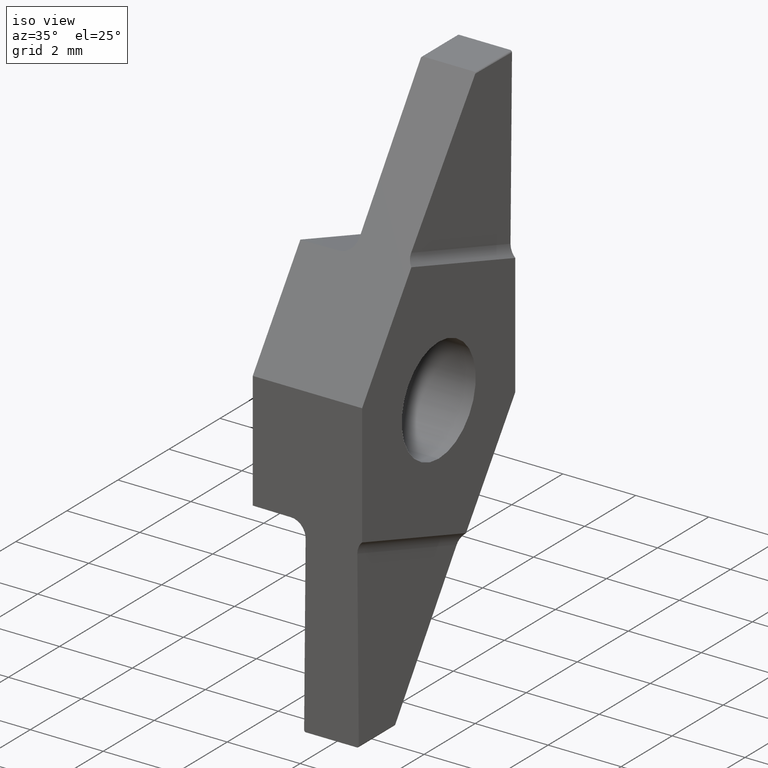
[diagram: clean part render]
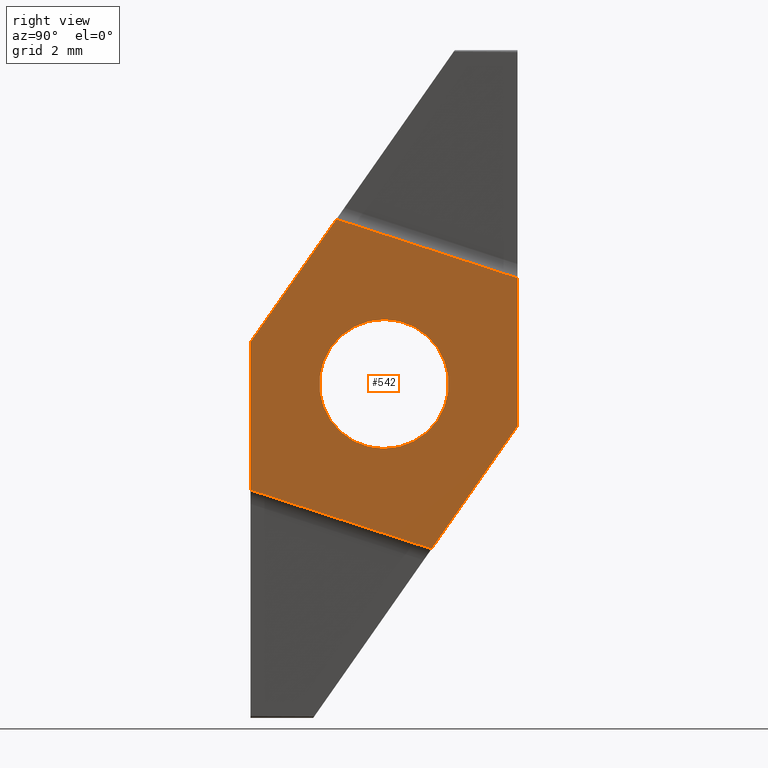
[diagram: tour spotlight — one face highlighted and labeled with its STEP entity id]
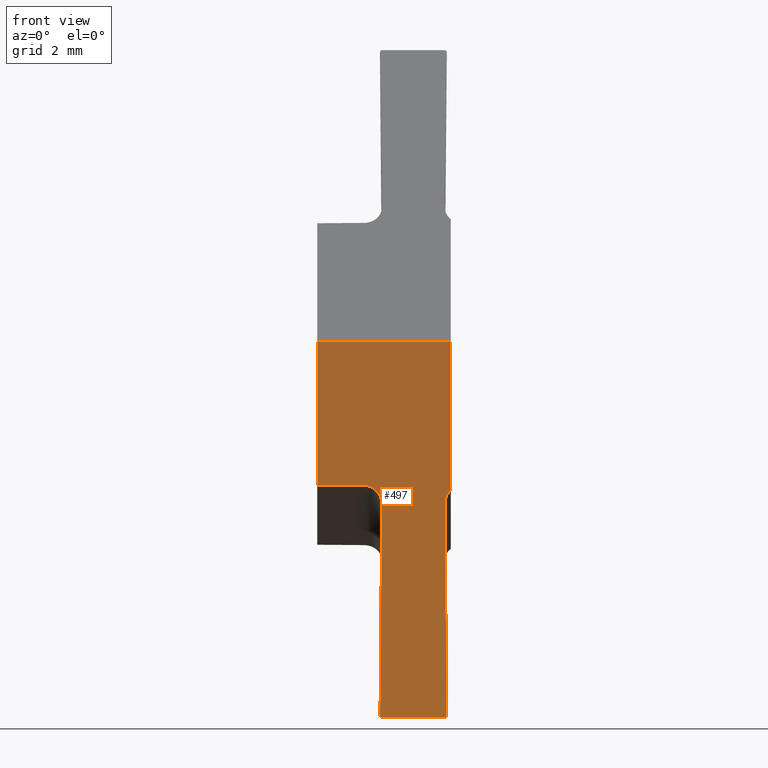
[diagram: tour spotlight — one face highlighted and labeled with its STEP entity id]
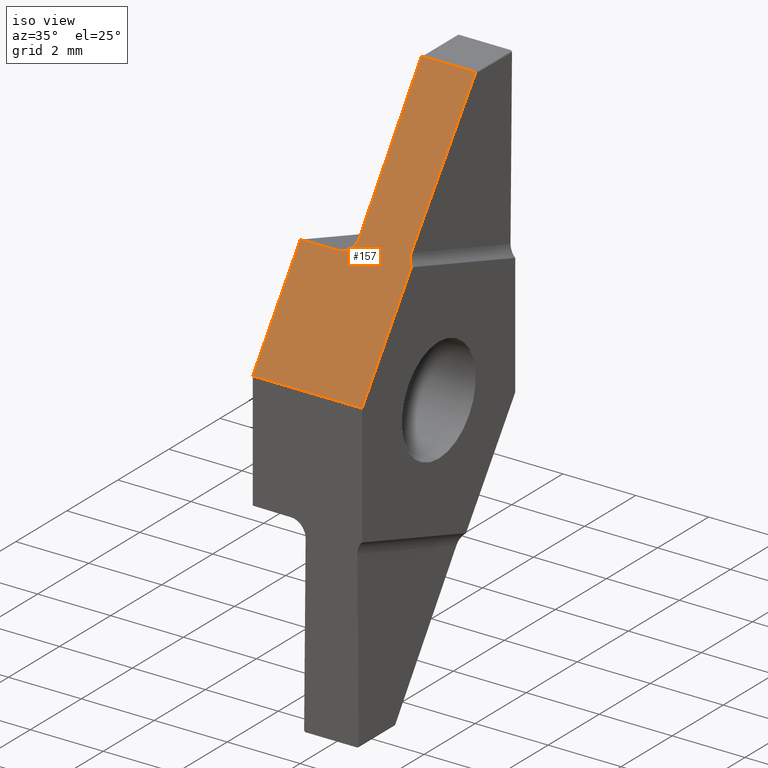
[diagram: tour spotlight — one face highlighted and labeled with its STEP entity id]
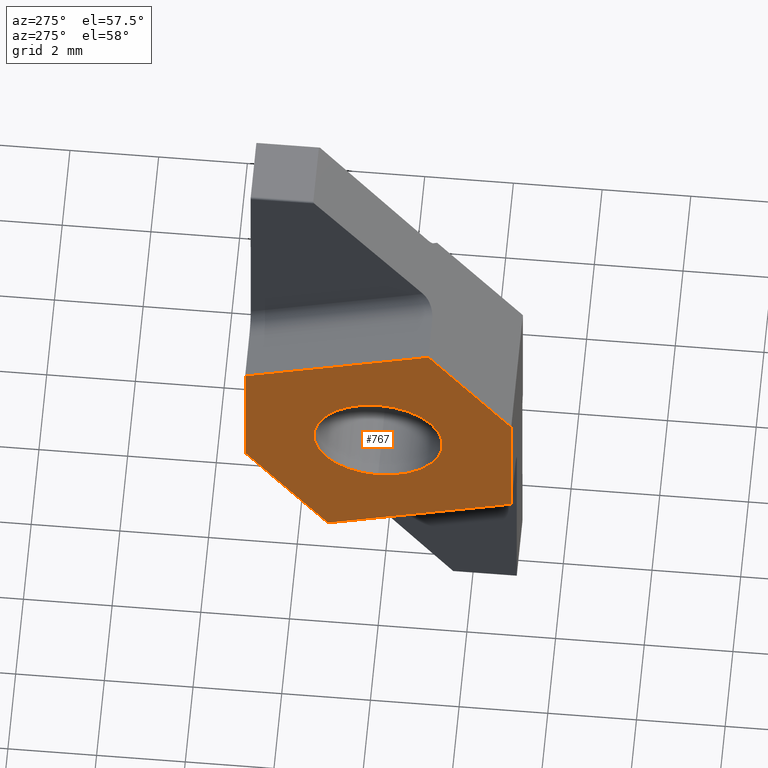
[diagram: tour spotlight — one face highlighted and labeled with its STEP entity id]
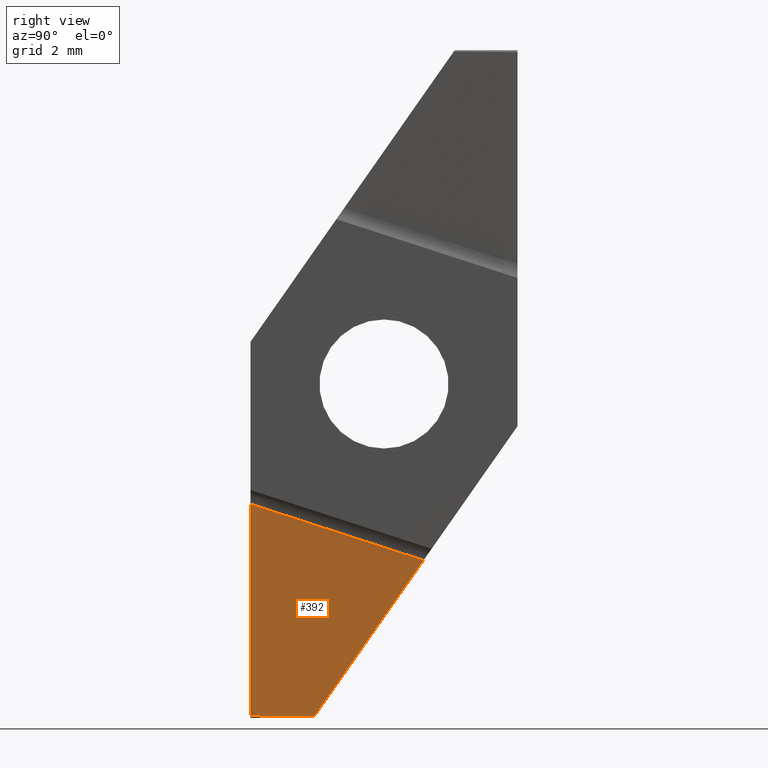
[diagram: tour spotlight — one face highlighted and labeled with its STEP entity id]
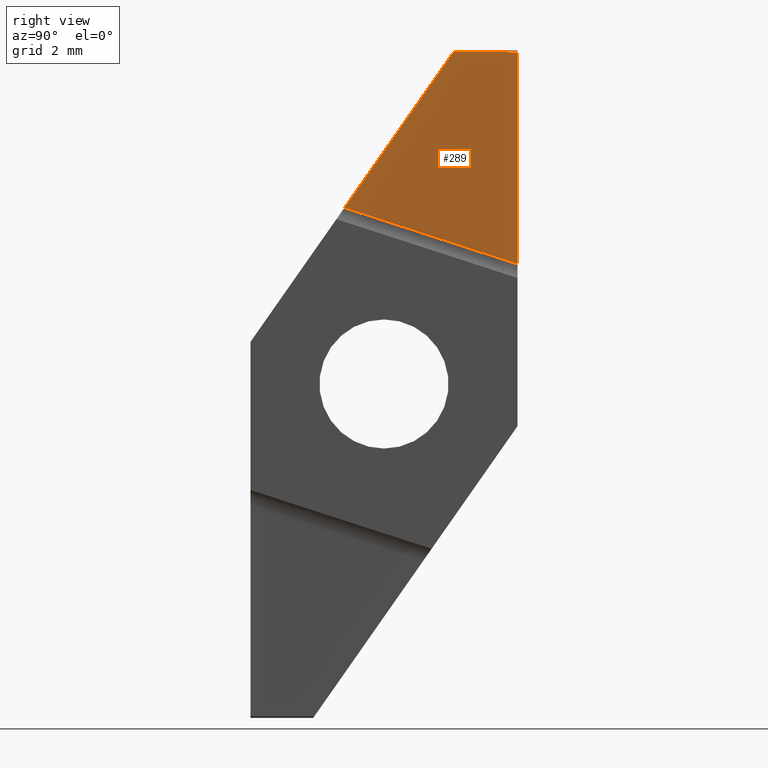
[diagram: tour spotlight — one face highlighted and labeled with its STEP entity id]
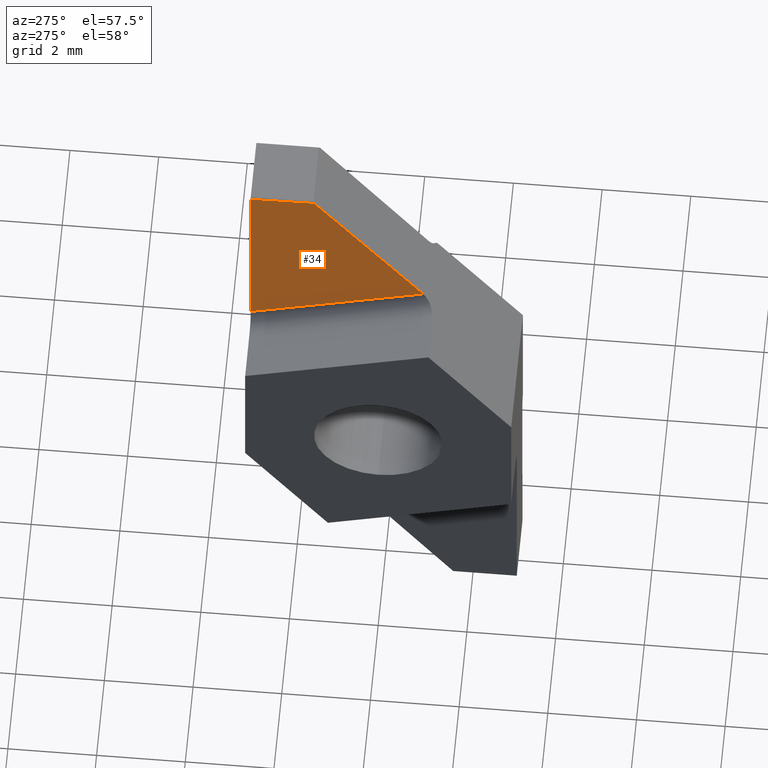
[diagram: tour spotlight — one face highlighted and labeled with its STEP entity id]
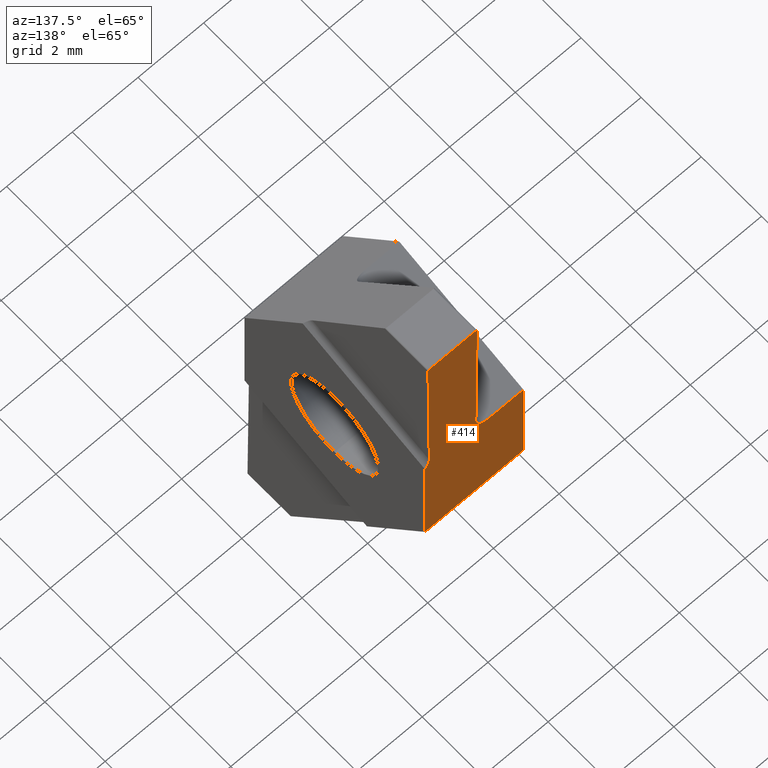
[diagram: tour spotlight — one face highlighted and labeled with its STEP entity id]
A machine part: a face-by-face anatomy tour. The part has 23 B-rep faces; the first image is the clean iso view, then the 8 largest visible faces are spotlighted one at a time (largest first), each with its STEP entity span.

Face 1 — right view, entity #542. In plain terms, the highlighted planar face has unit normal (1, 0, -0).
Definition (entity closure, byte-faithful):
#10 = CARTESIAN_POINT ( 'NONE',  ( 3.000000000000000000, -1.069273574088523526, 3.703259463367000848 ) ) ;
#20 = DIRECTION ( 'NONE',  ( 1.000000000000000000, 0.000000000000000000, -0.000000000000000000 ) ) ;
#23 = DIRECTION ( 'NONE',  ( 0.000000000000000000, -0.5735764363510442720, -0.8191520442889930198 ) ) ;
#25 = LINE ( 'NONE', #411, #299 ) ;
#35 = FACE_BOUND ( 'NONE', #99, .T. ) ;
#53 = VECTOR ( 'NONE', #562, 1000.000000000000227 ) ;
#86 = CIRCLE ( 'NONE', #539, 1.449999999999999067 ) ;
#87 = DIRECTION ( 'NONE',  ( 0.000000000000000000, -4.847819058262091306E-17, 1.000000000000000000 ) ) ;
#88 = VERTEX_POINT ( 'NONE', #669 ) ;
#96 = CARTESIAN_POINT ( 'NONE',  ( 3.000000000000000000, 0.000000000000000000, -1.449999999999999067 ) ) ;
#99 = EDGE_LOOP ( 'NONE', ( #770 ) ) ;
#110 = CARTESIAN_POINT ( 'NONE',  ( 3.000000000000000000, 0.000000000000000000, 0.000000000000000000 ) ) ;
#169 = EDGE_CURVE ( 'NONE', #88, #422, #275, .T. ) ;
#206 = CARTESIAN_POINT ( 'NONE',  ( 3.000000000000000000, -2.999999999999830802, 0.9458963666369446521 ) ) ;
#211 = LINE ( 'NONE', #571, #777 ) ;
#262 = CARTESIAN_POINT ( 'NONE',  ( 3.000000000000000000, -2.427050983125038197, 4.144428086663038080 ) ) ;
#266 = VERTEX_POINT ( 'NONE', #330 ) ;
#275 = LINE ( 'NONE', #206, #677 ) ;
#276 = EDGE_CURVE ( 'NONE', #697, #88, #211, .T. ) ;
#280 = DIRECTION ( 'NONE',  ( 0.000000000000000000, -4.847819058262091306E-17, -1.000000000000000000 ) ) ;
#299 = VECTOR ( 'NONE', #474, 1000.000000000000227 ) ;
#323 = AXIS2_PLACEMENT_3D ( 'NONE', #339, #20, #507 ) ;
#330 = CARTESIAN_POINT ( 'NONE',  ( 3.000000000000000000, 3.000000000000169198, -0.9458963666369446521 ) ) ;
#339 = CARTESIAN_POINT ( 'NONE',  ( 3.000000000000000000, 0.000000000000000000, 0.000000000000000000 ) ) ;
#350 = PLANE ( 'NONE',  #323 ) ;
#380 = CARTESIAN_POINT ( 'NONE',  ( 3.000000000000000000, 2.427050983125038197, -4.144428086663038080 ) ) ;
#393 = ORIENTED_EDGE ( 'NONE', *, *, #551, .T. ) ;
#394 = LINE ( 'NONE', #380, #53 ) ;
#397 = CARTESIAN_POINT ( 'NONE',  ( 3.000000000000000000, 3.000000000000169198, -0.9458963666369446521 ) ) ;
#399 = VERTEX_POINT ( 'NONE', #96 ) ;
#401 = ORIENTED_EDGE ( 'NONE', *, *, #276, .T. ) ;
#411 = CARTESIAN_POINT ( 'NONE',  ( 3.000000000000000000, -1.823566348508072199, -7.834663032647361192 ) ) ;
#422 = VERTEX_POINT ( 'NONE', #433 ) ;
#432 = EDGE_CURVE ( 'NONE', #697, #680, #618, .T. ) ;
#433 = CARTESIAN_POINT ( 'NONE',  ( 3.000000000000000000, -2.999999999999831246, -2.381072329785649977 ) ) ;
#449 = FACE_OUTER_BOUND ( 'NONE', #540, .T. ) ;
#455 = CARTESIAN_POINT ( 'NONE',  ( 3.000000000000000000, 2.999999999999831246, 2.381072329785649977 ) ) ;
#462 = EDGE_CURVE ( 'NONE', #399, #399, #86, .T. ) ;
#473 = EDGE_CURVE ( 'NONE', #500, #266, #25, .T. ) ;
#474 = DIRECTION ( 'NONE',  ( 0.000000000000000000, 0.5735764363510442720, 0.8191520442889930198 ) ) ;
#478 = ORIENTED_EDGE ( 'NONE', *, *, #624, .F. ) ;
#500 = VERTEX_POINT ( 'NONE', #672 ) ;
#507 = DIRECTION ( 'NONE',  ( 0.000000000000000000, 0.000000000000000000, 1.000000000000000000 ) ) ;
#515 = LINE ( 'NONE', #397, #735 ) ;
#525 = ORIENTED_EDGE ( 'NONE', *, *, #169, .T. ) ;
#539 = AXIS2_PLACEMENT_3D ( 'NONE', #110, #774, #573 ) ;
#540 = EDGE_LOOP ( 'NONE', ( #572, #401, #525, #478, #625, #393 ) ) ;
#542 = ADVANCED_FACE ( 'NONE', ( #35, #449 ), #350, .T. ) ;
#551 = EDGE_CURVE ( 'NONE', #266, #680, #515, .T. ) ;
#559 = DIRECTION ( 'NONE',  ( -0.000000000000000000, 0.9510565162951556406, -0.3090169943749410120 ) ) ;
#562 = DIRECTION ( 'NONE',  ( 0.000000000000000000, -0.9510565162951556406, 0.3090169943749410120 ) ) ;
#571 = CARTESIAN_POINT ( 'NONE',  ( 3.000000000000000000, 1.823566348508409707, 7.834663032647361192 ) ) ;
#572 = ORIENTED_EDGE ( 'NONE', *, *, #432, .F. ) ;
#573 = DIRECTION ( 'NONE',  ( 0.000000000000000000, 0.000000000000000000, -1.000000000000000000 ) ) ;
#579 = VECTOR ( 'NONE', #559, 1000.000000000000227 ) ;
#618 = LINE ( 'NONE', #262, #579 ) ;
#624 = EDGE_CURVE ( 'NONE', #500, #422, #394, .T. ) ;
#625 = ORIENTED_EDGE ( 'NONE', *, *, #473, .T. ) ;
#669 = CARTESIAN_POINT ( 'NONE',  ( 3.000000000000000000, -2.999999999999830802, 0.9458963666369446521 ) ) ;
#672 = CARTESIAN_POINT ( 'NONE',  ( 3.000000000000000000, 1.069273574088523526, -3.703259463367000848 ) ) ;
#677 = VECTOR ( 'NONE', #280, 1000.000000000000000 ) ;
#680 = VERTEX_POINT ( 'NONE', #455 ) ;
#697 = VERTEX_POINT ( 'NONE', #10 ) ;
#735 = VECTOR ( 'NONE', #87, 1000.000000000000000 ) ;
#770 = ORIENTED_EDGE ( 'NONE', *, *, #462, .T. ) ;
#774 = DIRECTION ( 'NONE',  ( -1.000000000000000000, 0.000000000000000000, 0.000000000000000000 ) ) ;
#777 = VECTOR ( 'NONE', #23, 1000.000000000000227 ) ;

Face 2 — front view, entity #497. In plain terms, the highlighted planar face has unit normal (0, 1, -0).
Definition (entity closure, byte-faithful):
#12 = VERTEX_POINT ( 'NONE', #148 ) ;
#24 = ORIENTED_EDGE ( 'NONE', *, *, #77, .T. ) ;
#27 = CARTESIAN_POINT ( 'NONE',  ( 2.971722154336991384, -2.999999999999830802, -2.294423796453480602 ) ) ;
#40 = ORIENTED_EDGE ( 'NONE', *, *, #355, .T. ) ;
#56 = CARTESIAN_POINT ( 'NONE',  ( 2.868520297534491004, -2.999999999999830802, -2.696678719166964555 ) ) ;
#62 = ORIENTED_EDGE ( 'NONE', *, *, #655, .T. ) ;
#66 = DIRECTION ( 'NONE',  ( 0.000000000000000000, 0.000000000000000000, 1.000000000000000000 ) ) ;
#77 = EDGE_CURVE ( 'NONE', #391, #773, #430, .T. ) ;
#78 = ORIENTED_EDGE ( 'NONE', *, *, #750, .F. ) ;
#85 = VERTEX_POINT ( 'NONE', #548 ) ;
#88 = VERTEX_POINT ( 'NONE', #669 ) ;
#97 = LINE ( 'NONE', #307, #689 ) ;
#112 = CARTESIAN_POINT ( 'NONE',  ( 1.451432179471500605, -2.999999999999830802, -2.702124314904428726 ) ) ;
#118 = VECTOR ( 'NONE', #248, 1000.000000000000114 ) ;
#119 = EDGE_CURVE ( 'NONE', #177, #85, #156, .T. ) ;
#121 = DIRECTION ( 'NONE',  ( 0.000000000000000000, 1.000000000000000000, -4.847819058262091306E-17 ) ) ;
#132 = DIRECTION ( 'NONE',  ( -0.000000000000000000, -1.000000000000000000, 4.847819058262091306E-17 ) ) ;
#134 = LINE ( 'NONE', #27, #173 ) ;
#138 = CARTESIAN_POINT ( 'NONE',  ( 3.379357527985992173E-18, -2.999999999999831246, -2.268489970101723152 ) ) ;
#143 =( BOUNDED_CURVE ( )  B_SPLINE_CURVE ( 3, ( #56, #304, #730, #746 ),
 .UNSPECIFIED., .F., .F. ) 
 B_SPLINE_CURVE_WITH_KNOTS ( ( 4, 4 ),
 ( 1.561620612498219485, 2.405687101123587190 ),
 .UNSPECIFIED. ) 
 CURVE ( )  GEOMETRIC_REPRESENTATION_ITEM ( )  RATIONAL_B_SPLINE_CURVE ( ( 1.000000000000000000, 0.9415053179130717931, 0.9415053179130717931, 1.000000000000000000 ) ) 
 REPRESENTATION_ITEM ( '' )  );
#148 = CARTESIAN_POINT ( 'NONE',  ( 0.000000000000000000, -2.999999999999830802, 0.9458963666369446521 ) ) ;
#156 = CIRCLE ( 'NONE', #192, 0.05000000000000056483 ) ;
#160 = CARTESIAN_POINT ( 'NONE',  ( 1.410001903846790583, -3.000000000000314859, -7.449563673225082283 ) ) ;
#167 = CARTESIAN_POINT ( 'NONE',  ( 10.00000000000000000, -3.000000000000169198, -7.500000000000000000 ) ) ;
#169 = EDGE_CURVE ( 'NONE', #88, #422, #275, .T. ) ;
#173 = VECTOR ( 'NONE', #326, 999.9999999999998863 ) ;
#177 = VERTEX_POINT ( 'NONE', #686 ) ;
#183 = CARTESIAN_POINT ( 'NONE',  ( 3.000000000000000000, -2.999999999999830802, 0.9458963666369446521 ) ) ;
#190 = CARTESIAN_POINT ( 'NONE',  ( 1.054768801550695079, -2.999999999999830802, -2.277694797982669606 ) ) ;
#192 = AXIS2_PLACEMENT_3D ( 'NONE', #617, #608, #66 ) ;
#206 = CARTESIAN_POINT ( 'NONE',  ( 3.000000000000000000, -2.999999999999830802, 0.9458963666369446521 ) ) ;
#207 = ORIENTED_EDGE ( 'NONE', *, *, #524, .T. ) ;
#208 = EDGE_CURVE ( 'NONE', #85, #417, #744, .T. ) ;
#218 = VERTEX_POINT ( 'NONE', #138 ) ;
#224 = DIRECTION ( 'NONE',  ( 0.000000000000000000, -4.847819058262091306E-17, -1.000000000000000000 ) ) ;
#227 = CARTESIAN_POINT ( 'NONE',  ( 1.460000000000000409, -2.999999999999832578, -7.500000000000003553 ) ) ;
#241 = PLANE ( 'NONE',  #359 ) ;
#243 = VECTOR ( 'NONE', #610, 1000.000000000000000 ) ;
#248 = DIRECTION ( 'NONE',  ( -0.008726535498373853145, -4.847634468166900475E-17, -0.9999619230641713097 ) ) ;
#256 = VECTOR ( 'NONE', #395, 1000.000000000000227 ) ;
#275 = LINE ( 'NONE', #206, #677 ) ;
#280 = DIRECTION ( 'NONE',  ( 0.000000000000000000, -4.847819058262091306E-17, -1.000000000000000000 ) ) ;
#284 = CARTESIAN_POINT ( 'NONE',  ( 1.453583646786359873, -2.999999999999829914, -2.455590579497275883 ) ) ;
#290 = VECTOR ( 'NONE', #653, 1000.000000000000000 ) ;
#304 = CARTESIAN_POINT ( 'NONE',  ( 2.867455770228641843, -2.999999999999831246, -2.574695972163809188 ) ) ;
#307 = CARTESIAN_POINT ( 'NONE',  ( 0.000000000000000000, -2.999999999999830802, 0.9458963666369446521 ) ) ;
#326 = DIRECTION ( 'NONE',  ( 0.9999619230641714207, -4.230466510160072040E-19, -0.008726535498370404514 ) ) ;
#332 = EDGE_CURVE ( 'NONE', #88, #12, #405, .T. ) ;
#355 = EDGE_CURVE ( 'NONE', #12, #218, #97, .T. ) ;
#359 = AXIS2_PLACEMENT_3D ( 'NONE', #183, #121, #372 ) ;
#372 = DIRECTION ( 'NONE',  ( 0.000000000000000000, 4.847819058262091306E-17, 1.000000000000000000 ) ) ;
#391 = VERTEX_POINT ( 'NONE', #424 ) ;
#395 = DIRECTION ( 'NONE',  ( -0.008726535498366836188, 4.847634468166900475E-17, 0.9999619230641713097 ) ) ;
#405 = LINE ( 'NONE', #546, #243 ) ;
#408 = ORIENTED_EDGE ( 'NONE', *, *, #208, .T. ) ;
#410 = ORIENTED_EDGE ( 'NONE', *, *, #332, .T. ) ;
#417 = VERTEX_POINT ( 'NONE', #614 ) ;
#422 = VERTEX_POINT ( 'NONE', #433 ) ;
#424 = CARTESIAN_POINT ( 'NONE',  ( 1.451432179471500605, -2.999999999999830802, -2.702124314904428726 ) ) ;
#428 = FACE_OUTER_BOUND ( 'NONE', #715, .T. ) ;
#430 = LINE ( 'NONE', #679, #118 ) ;
#433 = CARTESIAN_POINT ( 'NONE',  ( 3.000000000000000000, -2.999999999999831246, -2.381072329785649977 ) ) ;
#443 = DIRECTION ( 'NONE',  ( 0.000000000000000000, 0.000000000000000000, 1.000000000000000000 ) ) ;
#459 = CARTESIAN_POINT ( 'NONE',  ( 2.836744459594391365, -2.999999999999830802, 0.9444716571197171451 ) ) ;
#470 = ORIENTED_EDGE ( 'NONE', *, *, #169, .F. ) ;
#497 = ADVANCED_FACE ( 'NONE', ( #428 ), #241, .F. ) ;
#524 = EDGE_CURVE ( 'NONE', #417, #422, #143, .T. ) ;
#532 = CARTESIAN_POINT ( 'NONE',  ( 1.289238112131136926, -2.999999999999829914, -2.279740980657095406 ) ) ;
#535 = ORIENTED_EDGE ( 'NONE', *, *, #760, .T. ) ;
#538 = ORIENTED_EDGE ( 'NONE', *, *, #665, .T. ) ;
#546 = CARTESIAN_POINT ( 'NONE',  ( 3.000000000000000000, -2.999999999999830802, 0.9458963666369446521 ) ) ;
#548 = CARTESIAN_POINT ( 'NONE',  ( 2.909998096153209701, -3.000000000000002665, -7.449563673225081395 ) ) ;
#556 =( BOUNDED_CURVE ( )  B_SPLINE_CURVE ( 3, ( #716, #532, #284, #112 ),
 .UNSPECIFIED., .F., .F. ) 
 B_SPLINE_CURVE_WITH_KNOTS ( ( 4, 4 ),
 ( 3.149892207498850016, 4.721564694681373631 ),
 .UNSPECIFIED. ) 
 CURVE ( )  GEOMETRIC_REPRESENTATION_ITEM ( )  RATIONAL_B_SPLINE_CURVE ( ( 1.000000000000000000, 0.8045312959125144880, 0.8045312959125144880, 1.000000000000000000 ) ) 
 REPRESENTATION_ITEM ( '' )  );
#561 = CIRCLE ( 'NONE', #616, 0.05000000000000143219 ) ;
#565 = CARTESIAN_POINT ( 'NONE',  ( 1.460000000000000409, -2.999999999999829026, -7.450000000000001954 ) ) ;
#594 = LINE ( 'NONE', #167, #290 ) ;
#599 = VERTEX_POINT ( 'NONE', #190 ) ;
#608 = DIRECTION ( 'NONE',  ( -0.000000000000000000, -1.000000000000000000, 4.847819058262091306E-17 ) ) ;
#610 = DIRECTION ( 'NONE',  ( -1.000000000000000000, 0.000000000000000000, 0.000000000000000000 ) ) ;
#614 = CARTESIAN_POINT ( 'NONE',  ( 2.868520297534491004, -2.999999999999830802, -2.696678719166964555 ) ) ;
#616 = AXIS2_PLACEMENT_3D ( 'NONE', #565, #132, #443 ) ;
#617 = CARTESIAN_POINT ( 'NONE',  ( 2.860000000000000764, -2.999999999999829026, -7.449999999999999289 ) ) ;
#653 = DIRECTION ( 'NONE',  ( -1.000000000000000000, 0.000000000000000000, 0.000000000000000000 ) ) ;
#655 = EDGE_CURVE ( 'NONE', #218, #599, #134, .T. ) ;
#665 = EDGE_CURVE ( 'NONE', #773, #728, #561, .T. ) ;
#669 = CARTESIAN_POINT ( 'NONE',  ( 3.000000000000000000, -2.999999999999830802, 0.9458963666369446521 ) ) ;
#677 = VECTOR ( 'NONE', #280, 1000.000000000000000 ) ;
#679 = CARTESIAN_POINT ( 'NONE',  ( 1.483383476474299911, -2.999999999999830802, 0.9591316785270335155 ) ) ;
#686 = CARTESIAN_POINT ( 'NONE',  ( 2.860000000000000764, -3.000000000000169198, -7.500000000000000000 ) ) ;
#689 = VECTOR ( 'NONE', #224, 1000.000000000000000 ) ;
#715 = EDGE_LOOP ( 'NONE', ( #62, #535, #24, #538, #78, #745, #408, #207, #470, #410, #40 ) ) ;
#716 = CARTESIAN_POINT ( 'NONE',  ( 1.054768801550695079, -2.999999999999830802, -2.277694797982669606 ) ) ;
#728 = VERTEX_POINT ( 'NONE', #227 ) ;
#730 = CARTESIAN_POINT ( 'NONE',  ( 2.914005233789451310, -2.999999999999831246, -2.462957750624114261 ) ) ;
#744 = LINE ( 'NONE', #459, #256 ) ;
#745 = ORIENTED_EDGE ( 'NONE', *, *, #119, .T. ) ;
#746 = CARTESIAN_POINT ( 'NONE',  ( 3.000000000000000000, -2.999999999999831246, -2.381072329785649977 ) ) ;
#750 = EDGE_CURVE ( 'NONE', #177, #728, #594, .T. ) ;
#760 = EDGE_CURVE ( 'NONE', #599, #391, #556, .T. ) ;
#773 = VERTEX_POINT ( 'NONE', #160 ) ;

Face 3 — iso view, entity #157. In plain terms, the highlighted planar face has unit normal (0, 0.8192, -0.5736).
Definition (entity closure, byte-faithful):
#6 = CARTESIAN_POINT ( 'NONE',  ( 3.000000000000000000, 1.823566348508409707, 7.834663032647361192 ) ) ;
#10 = CARTESIAN_POINT ( 'NONE',  ( 3.000000000000000000, -1.069273574088523526, 3.703259463367000848 ) ) ;
#11 = CARTESIAN_POINT ( 'NONE',  ( 1.289238112131137370, -1.127075876279473032, 3.620709220707892140 ) ) ;
#12 = VERTEX_POINT ( 'NONE', #148 ) ;
#13 = EDGE_CURVE ( 'NONE', #261, #553, #333, .T. ) ;
#14 = VECTOR ( 'NONE', #67, 1000.000000000000114 ) ;
#23 = DIRECTION ( 'NONE',  ( 0.000000000000000000, -0.5735764363510442720, -0.8191520442889930198 ) ) ;
#30 = ORIENTED_EDGE ( 'NONE', *, *, #483, .T. ) ;
#39 = EDGE_CURVE ( 'NONE', #567, #747, #153, .T. ) ;
#44 = CARTESIAN_POINT ( 'NONE',  ( 1.451432179471501271, -0.8861363315425921927, 3.964806551268740265 ) ) ;
#59 = CARTESIAN_POINT ( 'NONE',  ( 2.860000000000000764, 1.589232770288270036, 7.500000000000000000 ) ) ;
#60 = FACE_OUTER_BOUND ( 'NONE', #476, .T. ) ;
#65 = EDGE_CURVE ( 'NONE', #448, #396, #343, .T. ) ;
#67 = DIRECTION ( 'NONE',  ( -0.9999623398293699950, -0.004977867723314927453, -0.007109131866878152899 ) ) ;
#80 = CARTESIAN_POINT ( 'NONE',  ( 1.460000000000000409, 1.589232770288606211, 7.500000000000000000 ) ) ;
#83 = CARTESIAN_POINT ( 'NONE',  ( 2.914005233789451310, -1.022563786041261302, 3.769967954062046100 ) ) ;
#88 = VERTEX_POINT ( 'NONE', #669 ) ;
#93 =( BOUNDED_CURVE ( )  B_SPLINE_CURVE ( 3, ( #124, #602, #664, #59 ),
 .UNSPECIFIED., .F., .F. ) 
 B_SPLINE_CURVE_WITH_KNOTS ( ( 4, 4 ),
 ( 1.967887147254286484, 3.141592653589793116 ),
 .UNSPECIFIED. ) 
 CURVE ( )  GEOMETRIC_REPRESENTATION_ITEM ( )  RATIONAL_B_SPLINE_CURVE ( ( 1.000000000000000000, 0.8884583775857104460, 0.8884583775857104460, 1.000000000000000000 ) ) 
 REPRESENTATION_ITEM ( '' )  );
#113 = ORIENTED_EDGE ( 'NONE', *, *, #39, .T. ) ;
#124 = CARTESIAN_POINT ( 'NONE',  ( 2.906109499133116447, 1.567762207338842861, 7.469336858320145822 ) ) ;
#148 = CARTESIAN_POINT ( 'NONE',  ( 0.000000000000000000, -2.999999999999830802, 0.9458963666369446521 ) ) ;
#153 = LINE ( 'NONE', #582, #311 ) ;
#157 = ADVANCED_FACE ( 'NONE', ( #60 ), #552, .F. ) ;
#166 = ORIENTED_EDGE ( 'NONE', *, *, #635, .T. ) ;
#174 = ORIENTED_EDGE ( 'NONE', *, *, #381, .T. ) ;
#184 = LINE ( 'NONE', #779, #203 ) ;
#202 = ORIENTED_EDGE ( 'NONE', *, *, #332, .F. ) ;
#203 = VECTOR ( 'NONE', #722, 1000.000000000000114 ) ;
#211 = LINE ( 'NONE', #571, #777 ) ;
#235 = CARTESIAN_POINT ( 'NONE',  ( 1.054768801550694191, -1.128243077449439635, 3.619042284683054778 ) ) ;
#243 = VECTOR ( 'NONE', #610, 1000.000000000000000 ) ;
#255 = CARTESIAN_POINT ( 'NONE',  ( 1.054768801550694191, -1.128243077449439635, 3.619042284683054778 ) ) ;
#260 = CARTESIAN_POINT ( 'NONE',  ( 2.868520297534491004, -0.8892426552336960555, 3.960370261281475290 ) ) ;
#261 = VERTEX_POINT ( 'NONE', #80 ) ;
#276 = EDGE_CURVE ( 'NONE', #697, #88, #211, .T. ) ;
#311 = VECTOR ( 'NONE', #520, 1000.000000000000114 ) ;
#314 = CARTESIAN_POINT ( 'NONE',  ( 0.000000000000000000, 1.823566348508409707, 7.834663032647361192 ) ) ;
#318 = CARTESIAN_POINT ( 'NONE',  ( 1.421925131091472450, 1.581177407767084819, 7.488495750071781920 ) ) ;
#325 = EDGE_CURVE ( 'NONE', #747, #553, #93, .T. ) ;
#332 = EDGE_CURVE ( 'NONE', #88, #12, #405, .T. ) ;
#333 = LINE ( 'NONE', #575, #415 ) ;
#337 = ORIENTED_EDGE ( 'NONE', *, *, #13, .F. ) ;
#343 =( BOUNDED_CURVE ( )  B_SPLINE_CURVE ( 3, ( #364, #374, #11, #255 ),
 .UNSPECIFIED., .F., .F. ) 
 B_SPLINE_CURVE_WITH_KNOTS ( ( 4, 4 ),
 ( 4.703213266088004829, 6.274885753270529776 ),
 .UNSPECIFIED. ) 
 CURVE ( )  GEOMETRIC_REPRESENTATION_ITEM ( )  RATIONAL_B_SPLINE_CURVE ( ( 1.000000000000000000, 0.8045312959125141550, 0.8045312959125141550, 1.000000000000000000 ) ) 
 REPRESENTATION_ITEM ( '' )  );
#352 = ORIENTED_EDGE ( 'NONE', *, *, #276, .F. ) ;
#356 = ORIENTED_EDGE ( 'NONE', *, *, #65, .T. ) ;
#364 = CARTESIAN_POINT ( 'NONE',  ( 1.451432179471501271, -0.8861363315425921927, 3.964806551268740265 ) ) ;
#365 = CARTESIAN_POINT ( 'NONE',  ( 0.000000000000000000, -1.133493774764394724, 3.611543511778694704 ) ) ;
#374 = CARTESIAN_POINT ( 'NONE',  ( 1.453583646786360761, -1.026766231340057400, 3.763966240185128154 ) ) ;
#376 = LINE ( 'NONE', #314, #402 ) ;
#379 = DIRECTION ( 'NONE',  ( 0.000000000000000000, -0.5735764363510442720, -0.8191520442889930198 ) ) ;
#381 = EDGE_CURVE ( 'NONE', #457, #448, #184, .T. ) ;
#390 =( BOUNDED_CURVE ( )  B_SPLINE_CURVE ( 3, ( #627, #83, #682, #753 ),
 .UNSPECIFIED., .F., .F. ) 
 B_SPLINE_CURVE_WITH_KNOTS ( ( 4, 4 ),
 ( 0.7359055524662067027, 1.579972041091574297 ),
 .UNSPECIFIED. ) 
 CURVE ( )  GEOMETRIC_REPRESENTATION_ITEM ( )  RATIONAL_B_SPLINE_CURVE ( ( 1.000000000000000000, 0.9415053179130719041, 0.9415053179130719041, 1.000000000000000000 ) ) 
 REPRESENTATION_ITEM ( '' )  );
#396 = VERTEX_POINT ( 'NONE', #235 ) ;
#402 = VECTOR ( 'NONE', #379, 1000.000000000000227 ) ;
#405 = LINE ( 'NONE', #546, #243 ) ;
#415 = VECTOR ( 'NONE', #458, 1000.000000000000000 ) ;
#435 = ORIENTED_EDGE ( 'NONE', *, *, #325, .T. ) ;
#441 = DIRECTION ( 'NONE',  ( 0.000000000000000000, 0.5735764363510442720, 0.8191520442889930198 ) ) ;
#448 = VERTEX_POINT ( 'NONE', #44 ) ;
#457 = VERTEX_POINT ( 'NONE', #541 ) ;
#458 = DIRECTION ( 'NONE',  ( 1.000000000000000000, 0.000000000000000000, 0.000000000000000000 ) ) ;
#463 = CARTESIAN_POINT ( 'NONE',  ( 2.860000000000000764, 1.589232770288270036, 7.500000000000000000 ) ) ;
#468 = ORIENTED_EDGE ( 'NONE', *, *, #503, .T. ) ;
#476 = EDGE_LOOP ( 'NONE', ( #337, #755, #174, #356, #468, #30, #202, #352, #166, #113, #435 ) ) ;
#483 = EDGE_CURVE ( 'NONE', #516, #12, #376, .T. ) ;
#491 = AXIS2_PLACEMENT_3D ( 'NONE', #6, #692, #441 ) ;
#503 = EDGE_CURVE ( 'NONE', #396, #516, #620, .T. ) ;
#516 = VERTEX_POINT ( 'NONE', #365 ) ;
#517 = CARTESIAN_POINT ( 'NONE',  ( 1.460000000000000409, 1.589232770288606211, 7.500000000000000000 ) ) ;
#520 = DIRECTION ( 'NONE',  ( 0.008774687666360856883, 0.5735543546259364023, 0.8191205083172948820 ) ) ;
#530 =( BOUNDED_CURVE ( )  B_SPLINE_CURVE ( 3, ( #517, #748, #318, #637 ),
 .UNSPECIFIED., .F., .F. ) 
 B_SPLINE_CURVE_WITH_KNOTS ( ( 4, 4 ),
 ( 3.141592653589793116, 4.315298159922322796 ),
 .UNSPECIFIED. ) 
 CURVE ( )  GEOMETRIC_REPRESENTATION_ITEM ( )  RATIONAL_B_SPLINE_CURVE ( ( 1.000000000000000000, 0.8884583775862600064, 0.8884583775862600064, 1.000000000000000000 ) ) 
 REPRESENTATION_ITEM ( '' )  );
#541 = CARTESIAN_POINT ( 'NONE',  ( 1.413890500866886502, 1.567762207339183478, 7.469336858320151151 ) ) ;
#546 = CARTESIAN_POINT ( 'NONE',  ( 3.000000000000000000, -2.999999999999830802, 0.9458963666369446521 ) ) ;
#552 = PLANE ( 'NONE',  #491 ) ;
#553 = VERTEX_POINT ( 'NONE', #463 ) ;
#567 = VERTEX_POINT ( 'NONE', #260 ) ;
#571 = CARTESIAN_POINT ( 'NONE',  ( 3.000000000000000000, 1.823566348508409707, 7.834663032647361192 ) ) ;
#575 = CARTESIAN_POINT ( 'NONE',  ( 3.000000000000000000, 1.589232770288606211, 7.500000000000000000 ) ) ;
#582 = CARTESIAN_POINT ( 'NONE',  ( 2.910029920781017410, 1.824019181218809571, 7.835309744780587948 ) ) ;
#602 = CARTESIAN_POINT ( 'NONE',  ( 2.898074868908619539, 1.581177407767039966, 7.488495750071722412 ) ) ;
#610 = DIRECTION ( 'NONE',  ( -1.000000000000000000, 0.000000000000000000, 0.000000000000000000 ) ) ;
#612 = CARTESIAN_POINT ( 'NONE',  ( 3.044514925925334570, -1.118338011413120947, 3.633188184999952774 ) ) ;
#620 = LINE ( 'NONE', #612, #14 ) ;
#627 = CARTESIAN_POINT ( 'NONE',  ( 3.000000000000000000, -1.069273574088523526, 3.703259463367000848 ) ) ;
#630 = EDGE_CURVE ( 'NONE', #261, #457, #530, .T. ) ;
#635 = EDGE_CURVE ( 'NONE', #697, #567, #390, .T. ) ;
#637 = CARTESIAN_POINT ( 'NONE',  ( 1.413890500866886502, 1.567762207339183478, 7.469336858320151151 ) ) ;
#643 = CARTESIAN_POINT ( 'NONE',  ( 2.906109499133116447, 1.567762207338842861, 7.469336858320145822 ) ) ;
#664 = CARTESIAN_POINT ( 'NONE',  ( 2.880775428178332209, 1.589232770288268703, 7.500000000000001776 ) ) ;
#669 = CARTESIAN_POINT ( 'NONE',  ( 3.000000000000000000, -2.999999999999830802, 0.9458963666369446521 ) ) ;
#682 = CARTESIAN_POINT ( 'NONE',  ( 2.867455770228641843, -0.9588251059263569465, 3.860996223020519480 ) ) ;
#692 = DIRECTION ( 'NONE',  ( 0.000000000000000000, 0.8191520442889931308, -0.5735764363510443831 ) ) ;
#697 = VERTEX_POINT ( 'NONE', #10 ) ;
#722 = DIRECTION ( 'NONE',  ( 0.008774687666367915473, -0.5735543546259364023, -0.8191205083172947710 ) ) ;
#747 = VERTEX_POINT ( 'NONE', #643 ) ;
#748 = CARTESIAN_POINT ( 'NONE',  ( 1.439224571821728027, 1.589232770288272256, 7.500000000000002665 ) ) ;
#753 = CARTESIAN_POINT ( 'NONE',  ( 2.868520297534491004, -0.8892426552336960555, 3.960370261281475290 ) ) ;
#755 = ORIENTED_EDGE ( 'NONE', *, *, #630, .T. ) ;
#777 = VECTOR ( 'NONE', #23, 1000.000000000000227 ) ;
#779 = CARTESIAN_POINT ( 'NONE',  ( 1.410099431060302333, 1.815564143878643177, 7.823234700056299395 ) ) ;

Face 4 — auxiliary view, entity #767. In plain terms, the highlighted planar face has unit normal (1, 0, -0).
Definition (entity closure, byte-faithful):
#2 = LINE ( 'NONE', #312, #338 ) ;
#12 = VERTEX_POINT ( 'NONE', #148 ) ;
#15 = LINE ( 'NONE', #16, #158 ) ;
#16 = CARTESIAN_POINT ( 'NONE',  ( 6.758715055971984346E-18, 3.960821204758893543, -4.530197881483450040 ) ) ;
#31 = FACE_BOUND ( 'NONE', #81, .T. ) ;
#43 = VERTEX_POINT ( 'NONE', #95 ) ;
#49 = VERTEX_POINT ( 'NONE', #100 ) ;
#81 = EDGE_LOOP ( 'NONE', ( #406 ) ) ;
#91 = EDGE_CURVE ( 'NONE', #49, #647, #2, .T. ) ;
#95 = CARTESIAN_POINT ( 'NONE',  ( -4.303015114662157645E-16, 1.133493774764669171, -3.611543511778783966 ) ) ;
#97 = LINE ( 'NONE', #307, #689 ) ;
#100 = CARTESIAN_POINT ( 'NONE',  ( 0.000000000000000000, 3.000000000000169198, -0.9458963666369446521 ) ) ;
#138 = CARTESIAN_POINT ( 'NONE',  ( 3.379357527985992173E-18, -2.999999999999831246, -2.268489970101723152 ) ) ;
#146 = ORIENTED_EDGE ( 'NONE', *, *, #674, .T. ) ;
#148 = CARTESIAN_POINT ( 'NONE',  ( 0.000000000000000000, -2.999999999999830802, 0.9458963666369446521 ) ) ;
#158 = VECTOR ( 'NONE', #210, 1000.000000000000114 ) ;
#182 = ORIENTED_EDGE ( 'NONE', *, *, #426, .F. ) ;
#189 = DIRECTION ( 'NONE',  ( 0.000000000000000000, -4.847819058262091306E-17, 1.000000000000000000 ) ) ;
#196 = DIRECTION ( 'NONE',  ( 0.000000000000000000, 0.5735764363510442720, 0.8191520442889930198 ) ) ;
#210 = DIRECTION ( 'NONE',  ( 0.000000000000000000, -0.9510565162951555296, 0.3090169943749411230 ) ) ;
#216 = DIRECTION ( 'NONE',  ( 0.000000000000000000, 0.000000000000000000, 1.000000000000000000 ) ) ;
#218 = VERTEX_POINT ( 'NONE', #138 ) ;
#224 = DIRECTION ( 'NONE',  ( 0.000000000000000000, -4.847819058262091306E-17, -1.000000000000000000 ) ) ;
#257 = CIRCLE ( 'NONE', #272, 1.449999999999999512 ) ;
#271 = VECTOR ( 'NONE', #298, 1000.000000000000114 ) ;
#272 = AXIS2_PLACEMENT_3D ( 'NONE', #684, #588, #706 ) ;
#279 = FACE_OUTER_BOUND ( 'NONE', #621, .T. ) ;
#283 = ORIENTED_EDGE ( 'NONE', *, *, #91, .F. ) ;
#285 = LINE ( 'NONE', #589, #271 ) ;
#296 = VERTEX_POINT ( 'NONE', #526 ) ;
#297 = ORIENTED_EDGE ( 'NONE', *, *, #483, .F. ) ;
#298 = DIRECTION ( 'NONE',  ( -0.000000000000000000, 0.9510565162951555296, -0.3090169943749411230 ) ) ;
#307 = CARTESIAN_POINT ( 'NONE',  ( 0.000000000000000000, -2.999999999999830802, 0.9458963666369446521 ) ) ;
#312 = CARTESIAN_POINT ( 'NONE',  ( 0.000000000000000000, 3.000000000000169198, -0.9458963666369446521 ) ) ;
#314 = CARTESIAN_POINT ( 'NONE',  ( 0.000000000000000000, 1.823566348508409707, 7.834663032647361192 ) ) ;
#338 = VECTOR ( 'NONE', #189, 1000.000000000000000 ) ;
#355 = EDGE_CURVE ( 'NONE', #12, #218, #97, .T. ) ;
#365 = CARTESIAN_POINT ( 'NONE',  ( 0.000000000000000000, -1.133493774764394724, 3.611543511778694704 ) ) ;
#369 = EDGE_CURVE ( 'NONE', #516, #647, #285, .T. ) ;
#376 = LINE ( 'NONE', #314, #402 ) ;
#379 = DIRECTION ( 'NONE',  ( 0.000000000000000000, -0.5735764363510442720, -0.8191520442889930198 ) ) ;
#402 = VECTOR ( 'NONE', #379, 1000.000000000000227 ) ;
#406 = ORIENTED_EDGE ( 'NONE', *, *, #726, .F. ) ;
#426 = EDGE_CURVE ( 'NONE', #43, #49, #487, .T. ) ;
#475 = VECTOR ( 'NONE', #196, 1000.000000000000227 ) ;
#483 = EDGE_CURVE ( 'NONE', #516, #12, #376, .T. ) ;
#486 = ORIENTED_EDGE ( 'NONE', *, *, #355, .F. ) ;
#487 = LINE ( 'NONE', #496, #475 ) ;
#494 = AXIS2_PLACEMENT_3D ( 'NONE', #600, #757, #216 ) ;
#496 = CARTESIAN_POINT ( 'NONE',  ( 0.000000000000000000, -1.823566348508072199, -7.834663032647361192 ) ) ;
#516 = VERTEX_POINT ( 'NONE', #365 ) ;
#521 = PLANE ( 'NONE',  #494 ) ;
#526 = CARTESIAN_POINT ( 'NONE',  ( -1.224646799147353885E-17, 0.000000000000000000, -1.449999999999999512 ) ) ;
#570 = CARTESIAN_POINT ( 'NONE',  ( 0.000000000000000000, 3.000000000000168754, 2.268489970101614794 ) ) ;
#588 = DIRECTION ( 'NONE',  ( -1.000000000000000000, 0.000000000000000000, 0.000000000000000000 ) ) ;
#589 = CARTESIAN_POINT ( 'NONE',  ( 6.758715055971984346E-18, -3.960821204758893543, 4.530197881483450040 ) ) ;
#600 = CARTESIAN_POINT ( 'NONE',  ( 0.000000000000000000, 0.000000000000000000, 0.000000000000000000 ) ) ;
#621 = EDGE_LOOP ( 'NONE', ( #297, #656, #283, #182, #146, #486 ) ) ;
#647 = VERTEX_POINT ( 'NONE', #570 ) ;
#656 = ORIENTED_EDGE ( 'NONE', *, *, #369, .T. ) ;
#674 = EDGE_CURVE ( 'NONE', #43, #218, #15, .T. ) ;
#684 = CARTESIAN_POINT ( 'NONE',  ( -1.224646799147353885E-17, 0.000000000000000000, 0.000000000000000000 ) ) ;
#689 = VECTOR ( 'NONE', #224, 1000.000000000000000 ) ;
#706 = DIRECTION ( 'NONE',  ( 0.000000000000000000, 0.000000000000000000, -1.000000000000000000 ) ) ;
#726 = EDGE_CURVE ( 'NONE', #296, #296, #257, .T. ) ;
#757 = DIRECTION ( 'NONE',  ( 1.000000000000000000, 0.000000000000000000, -0.000000000000000000 ) ) ;
#767 = ADVANCED_FACE ( 'NONE', ( #31, #279 ), #521, .F. ) ;

Face 5 — right view, entity #392. In plain terms, the highlighted planar face has unit normal (-1, -0.0028, -0.0087).
Definition (entity closure, byte-faithful):
#32 = CARTESIAN_POINT ( 'NONE',  ( 2.909998096153209701, -3.000000000000002665, -7.449563673225081395 ) ) ;
#37 = PLANE ( 'NONE',  #720 ) ;
#69 = CARTESIAN_POINT ( 'NONE',  ( 2.906109499133116447, -1.567762207338842861, -7.469336858320145822 ) ) ;
#74 = CARTESIAN_POINT ( 'NONE',  ( 2.868520297534491004, 0.8892426552336960555, -3.960370261281475290 ) ) ;
#85 = VERTEX_POINT ( 'NONE', #548 ) ;
#90 = CARTESIAN_POINT ( 'NONE',  ( 2.908743354924325342, -2.515967305518679087, -7.463056325603251828 ) ) ;
#108 = CARTESIAN_POINT ( 'NONE',  ( 2.910029920781017410, -1.824019181218809571, -7.835309744780587948 ) ) ;
#208 = EDGE_CURVE ( 'NONE', #85, #417, #744, .T. ) ;
#213 = EDGE_CURVE ( 'NONE', #85, #295, #250, .T. ) ;
#242 = CARTESIAN_POINT ( 'NONE',  ( 2.910438247308825055, -29.66724040110625538, 1.164711650497192164 ) ) ;
#249 = VERTEX_POINT ( 'NONE', #74 ) ;
#250 =( BOUNDED_CURVE ( )  B_SPLINE_CURVE ( 3, ( #32, #511, #90, #69 ),
 .UNSPECIFIED., .F., .F. ) 
 B_SPLINE_CURVE_WITH_KNOTS ( ( 4, 4 ),
 ( 3.141592653589812212, 3.547410120309146375 ),
 .UNSPECIFIED. ) 
 CURVE ( )  GEOMETRIC_REPRESENTATION_ITEM ( )  RATIONAL_B_SPLINE_CURVE ( ( 1.000000000000000000, 0.9863230376731891846, 0.9863230376731891846, 1.000000000000000000 ) ) 
 REPRESENTATION_ITEM ( '' )  );
#256 = VECTOR ( 'NONE', #395, 1000.000000000000227 ) ;
#258 = DIRECTION ( 'NONE',  ( -0.000000000000000000, -0.9510565162951555296, 0.3090169943749410675 ) ) ;
#264 = LINE ( 'NONE', #451, #666 ) ;
#295 = VERTEX_POINT ( 'NONE', #480 ) ;
#375 = VECTOR ( 'NONE', #713, 1000.000000000000114 ) ;
#385 = ORIENTED_EDGE ( 'NONE', *, *, #681, .T. ) ;
#387 = LINE ( 'NONE', #108, #375 ) ;
#392 = ADVANCED_FACE ( 'NONE', ( #784 ), #37, .F. ) ;
#395 = DIRECTION ( 'NONE',  ( -0.008726535498366836188, 4.847634468166900475E-17, 0.9999619230641713097 ) ) ;
#417 = VERTEX_POINT ( 'NONE', #614 ) ;
#451 = CARTESIAN_POINT ( 'NONE',  ( 2.868520297534491004, -28.25557969565815952, 5.509356563732108469 ) ) ;
#459 = CARTESIAN_POINT ( 'NONE',  ( 2.836744459594391365, -2.999999999999830802, 0.9444716571197171451 ) ) ;
#480 = CARTESIAN_POINT ( 'NONE',  ( 2.906109499133116447, -1.567762207338842861, -7.469336858320145822 ) ) ;
#511 = CARTESIAN_POINT ( 'NONE',  ( 2.910057527824267520, -2.999999999999988454, -7.456373868186558340 ) ) ;
#523 = ORIENTED_EDGE ( 'NONE', *, *, #597, .F. ) ;
#527 = DIRECTION ( 'NONE',  ( -0.9999579034289297619, -0.002835411865493694429, -0.008726500419541514258 ) ) ;
#548 = CARTESIAN_POINT ( 'NONE',  ( 2.909998096153209701, -3.000000000000002665, -7.449563673225081395 ) ) ;
#597 = EDGE_CURVE ( 'NONE', #249, #295, #387, .T. ) ;
#614 = CARTESIAN_POINT ( 'NONE',  ( 2.868520297534491004, -2.999999999999830802, -2.696678719166964555 ) ) ;
#633 = ORIENTED_EDGE ( 'NONE', *, *, #208, .F. ) ;
#654 = EDGE_LOOP ( 'NONE', ( #523, #385, #633, #719 ) ) ;
#666 = VECTOR ( 'NONE', #258, 1000.000000000000114 ) ;
#681 = EDGE_CURVE ( 'NONE', #249, #417, #264, .T. ) ;
#713 = DIRECTION ( 'NONE',  ( 0.008774687666360856883, -0.5735543546259364023, -0.8191205083172948820 ) ) ;
#719 = ORIENTED_EDGE ( 'NONE', *, *, #213, .T. ) ;
#720 = AXIS2_PLACEMENT_3D ( 'NONE', #242, #527, #765 ) ;
#744 = LINE ( 'NONE', #459, #256 ) ;
#765 = DIRECTION ( 'NONE',  ( 0.008726535498366836188, 0.000000000000000000, -0.9999619230641714207 ) ) ;
#784 = FACE_OUTER_BOUND ( 'NONE', #654, .T. ) ;

Face 6 — right view, entity #289. In plain terms, the highlighted planar face has unit normal (-1, 0.0028, 0.0087).
Definition (entity closure, byte-faithful):
#8 = DIRECTION ( 'NONE',  ( -0.000000000000000000, 0.9510565162951555296, -0.3090169943749410675 ) ) ;
#28 = PLANE ( 'NONE',  #657 ) ;
#33 = VERTEX_POINT ( 'NONE', #652 ) ;
#39 = EDGE_CURVE ( 'NONE', #567, #747, #153, .T. ) ;
#42 = CARTESIAN_POINT ( 'NONE',  ( 2.910057527824267520, 2.999999999999988454, 7.456373868186558340 ) ) ;
#92 = VERTEX_POINT ( 'NONE', #493 ) ;
#107 = CARTESIAN_POINT ( 'NONE',  ( 2.908743354924325342, 2.515967305518679087, 7.463056325603251828 ) ) ;
#123 = EDGE_CURVE ( 'NONE', #567, #33, #544, .T. ) ;
#153 = LINE ( 'NONE', #582, #311 ) ;
#176 = CARTESIAN_POINT ( 'NONE',  ( 2.836744459594391365, 2.999999999999830802, -0.9444716571197171451 ) ) ;
#186 = LINE ( 'NONE', #176, #560 ) ;
#260 = CARTESIAN_POINT ( 'NONE',  ( 2.868520297534491004, -0.8892426552336960555, 3.960370261281475290 ) ) ;
#281 = ORIENTED_EDGE ( 'NONE', *, *, #301, .F. ) ;
#289 = ADVANCED_FACE ( 'NONE', ( #577 ), #28, .F. ) ;
#292 = CARTESIAN_POINT ( 'NONE',  ( 2.906109499133116447, 1.567762207338842861, 7.469336858320145822 ) ) ;
#300 = EDGE_LOOP ( 'NONE', ( #420, #569, #281, #519 ) ) ;
#301 = EDGE_CURVE ( 'NONE', #92, #33, #186, .T. ) ;
#305 = CARTESIAN_POINT ( 'NONE',  ( 2.868520297534491004, 28.25557969565815952, -5.509356563732108469 ) ) ;
#311 = VECTOR ( 'NONE', #520, 1000.000000000000114 ) ;
#420 = ORIENTED_EDGE ( 'NONE', *, *, #39, .F. ) ;
#456 = DIRECTION ( 'NONE',  ( 0.008726535498366836188, 0.000000000000000000, 0.9999619230641714207 ) ) ;
#469 = CARTESIAN_POINT ( 'NONE',  ( 2.909998096153209701, 3.000000000000002665, 7.449563673225081395 ) ) ;
#493 = CARTESIAN_POINT ( 'NONE',  ( 2.909998096153209701, 3.000000000000002665, 7.449563673225081395 ) ) ;
#512 = VECTOR ( 'NONE', #8, 1000.000000000000114 ) ;
#518 = CARTESIAN_POINT ( 'NONE',  ( 2.910438247308825055, 29.66724040110625538, -1.164711650497192164 ) ) ;
#519 = ORIENTED_EDGE ( 'NONE', *, *, #732, .T. ) ;
#520 = DIRECTION ( 'NONE',  ( 0.008774687666360856883, 0.5735543546259364023, 0.8191205083172948820 ) ) ;
#544 = LINE ( 'NONE', #305, #512 ) ;
#549 = DIRECTION ( 'NONE',  ( -0.008726535498366836188, -4.847634468166900475E-17, -0.9999619230641713097 ) ) ;
#560 = VECTOR ( 'NONE', #549, 1000.000000000000227 ) ;
#567 = VERTEX_POINT ( 'NONE', #260 ) ;
#569 = ORIENTED_EDGE ( 'NONE', *, *, #123, .T. ) ;
#577 = FACE_OUTER_BOUND ( 'NONE', #300, .T. ) ;
#582 = CARTESIAN_POINT ( 'NONE',  ( 2.910029920781017410, 1.824019181218809571, 7.835309744780587948 ) ) ;
#634 =( BOUNDED_CURVE ( )  B_SPLINE_CURVE ( 3, ( #469, #42, #107, #292 ),
 .UNSPECIFIED., .F., .F. ) 
 B_SPLINE_CURVE_WITH_KNOTS ( ( 4, 4 ),
 ( 3.141592653589812212, 3.547410120309146375 ),
 .UNSPECIFIED. ) 
 CURVE ( )  GEOMETRIC_REPRESENTATION_ITEM ( )  RATIONAL_B_SPLINE_CURVE ( ( 1.000000000000000000, 0.9863230376731891846, 0.9863230376731891846, 1.000000000000000000 ) ) 
 REPRESENTATION_ITEM ( '' )  );
#643 = CARTESIAN_POINT ( 'NONE',  ( 2.906109499133116447, 1.567762207338842861, 7.469336858320145822 ) ) ;
#652 = CARTESIAN_POINT ( 'NONE',  ( 2.868520297534491004, 2.999999999999830802, 2.696678719166964555 ) ) ;
#657 = AXIS2_PLACEMENT_3D ( 'NONE', #518, #754, #456 ) ;
#732 = EDGE_CURVE ( 'NONE', #92, #747, #634, .T. ) ;
#747 = VERTEX_POINT ( 'NONE', #643 ) ;
#754 = DIRECTION ( 'NONE',  ( -0.9999579034289297619, 0.002835411865493694429, 0.008726500419541514258 ) ) ;

Face 7 — auxiliary view, entity #34. In plain terms, the highlighted planar face has unit normal (1, 0.0028, 0.0087).
Definition (entity closure, byte-faithful):
#1 = EDGE_CURVE ( 'NONE', #51, #306, #344, .T. ) ;
#19 = EDGE_CURVE ( 'NONE', #51, #448, #642, .T. ) ;
#26 = DIRECTION ( 'NONE',  ( 5.093655730767995543E-19, -0.9510565162951555296, 0.3090169943749410120 ) ) ;
#34 = ADVANCED_FACE ( 'NONE', ( #404 ), #209, .F. ) ;
#44 = CARTESIAN_POINT ( 'NONE',  ( 1.451432179471501271, -0.8861363315425921927, 3.964806551268740265 ) ) ;
#51 = VERTEX_POINT ( 'NONE', #676 ) ;
#75 = EDGE_LOOP ( 'NONE', ( #768, #609, #528, #340 ) ) ;
#129 = VECTOR ( 'NONE', #450, 1000.000000000000114 ) ;
#184 = LINE ( 'NONE', #779, #203 ) ;
#193 = CARTESIAN_POINT ( 'NONE',  ( 1.409942472175732320, 3.000000000000333511, 7.456373868186561005 ) ) ;
#203 = VECTOR ( 'NONE', #722, 1000.000000000000114 ) ;
#209 = PLANE ( 'NONE',  #445 ) ;
#215 = CARTESIAN_POINT ( 'NONE',  ( 1.483383476474299911, 2.999999999999830802, -0.9591316785270335155 ) ) ;
#254 = CARTESIAN_POINT ( 'NONE',  ( 1.411256645075674276, 2.515967305519234198, 7.463056325603256269 ) ) ;
#306 = VERTEX_POINT ( 'NONE', #366 ) ;
#340 = ORIENTED_EDGE ( 'NONE', *, *, #698, .T. ) ;
#344 = LINE ( 'NONE', #215, #129 ) ;
#360 = VECTOR ( 'NONE', #26, 1000.000000000000114 ) ;
#366 = CARTESIAN_POINT ( 'NONE',  ( 1.410001903846790805, 3.000000000000168754, 7.449563673225082283 ) ) ;
#381 = EDGE_CURVE ( 'NONE', #457, #448, #184, .T. ) ;
#404 = FACE_OUTER_BOUND ( 'NONE', #75, .T. ) ;
#445 = AXIS2_PLACEMENT_3D ( 'NONE', #704, #454, #700 ) ;
#448 = VERTEX_POINT ( 'NONE', #44 ) ;
#450 = DIRECTION ( 'NONE',  ( -0.008726535498373853145, 4.847634468166900475E-17, 0.9999619230641713097 ) ) ;
#454 = DIRECTION ( 'NONE',  ( 0.9999579034289297619, 0.002835411865495975157, 0.008726500419548532950 ) ) ;
#457 = VERTEX_POINT ( 'NONE', #541 ) ;
#498 = CARTESIAN_POINT ( 'NONE',  ( 1.410001903846790805, 3.000000000000168754, 7.449563673225082283 ) ) ;
#504 = CARTESIAN_POINT ( 'NONE',  ( 1.413890500866886502, 1.567762207339183478, 7.469336858320151151 ) ) ;
#528 = ORIENTED_EDGE ( 'NONE', *, *, #381, .F. ) ;
#536 =( BOUNDED_CURVE ( )  B_SPLINE_CURVE ( 3, ( #504, #254, #193, #498 ),
 .UNSPECIFIED., .F., .F. ) 
 B_SPLINE_CURVE_WITH_KNOTS ( ( 4, 4 ),
 ( 2.735775186870369691, 3.141592653589801110 ),
 .UNSPECIFIED. ) 
 CURVE ( )  GEOMETRIC_REPRESENTATION_ITEM ( )  RATIONAL_B_SPLINE_CURVE ( ( 1.000000000000000000, 0.9863230376731826343, 0.9863230376731826343, 1.000000000000000000 ) ) 
 REPRESENTATION_ITEM ( '' )  );
#541 = CARTESIAN_POINT ( 'NONE',  ( 1.413890500866886502, 1.567762207339183478, 7.469336858320151151 ) ) ;
#609 = ORIENTED_EDGE ( 'NONE', *, *, #19, .T. ) ;
#642 = LINE ( 'NONE', #752, #360 ) ;
#676 = CARTESIAN_POINT ( 'NONE',  ( 1.451432179471500383, 3.000000000000168754, 2.702124314904319924 ) ) ;
#698 = EDGE_CURVE ( 'NONE', #457, #306, #536, .T. ) ;
#700 = DIRECTION ( 'NONE',  ( 0.008726535498373853145, 0.000000000000000000, -0.9999619230641713097 ) ) ;
#704 = CARTESIAN_POINT ( 'NONE',  ( 1.453192802157977859, 29.66724040110625538, -6.164334712623246837 ) ) ;
#722 = DIRECTION ( 'NONE',  ( 0.008774687666367915473, -0.5735543546259364023, -0.8191205083172947710 ) ) ;
#752 = CARTESIAN_POINT ( 'NONE',  ( 1.451432179471500383, -1.002540241998005177, 4.002628474494319910 ) ) ;
#768 = ORIENTED_EDGE ( 'NONE', *, *, #1, .F. ) ;
#779 = CARTESIAN_POINT ( 'NONE',  ( 1.410099431060302333, 1.815564143878643177, 7.823234700056299395 ) ) ;

Face 8 — auxiliary view, entity #414. In plain terms, the highlighted planar face has unit normal (0, -1, -0).
Definition (entity closure, byte-faithful):
#1 = EDGE_CURVE ( 'NONE', #51, #306, #344, .T. ) ;
#2 = LINE ( 'NONE', #312, #338 ) ;
#18 = ORIENTED_EDGE ( 'NONE', *, *, #490, .T. ) ;
#33 = VERTEX_POINT ( 'NONE', #652 ) ;
#45 = DIRECTION ( 'NONE',  ( 0.000000000000000000, 0.000000000000000000, -1.000000000000000000 ) ) ;
#49 = VERTEX_POINT ( 'NONE', #100 ) ;
#51 = VERTEX_POINT ( 'NONE', #676 ) ;
#52 = CIRCLE ( 'NONE', #705, 0.05000000000000056483 ) ;
#58 = ORIENTED_EDGE ( 'NONE', *, *, #91, .T. ) ;
#71 = DIRECTION ( 'NONE',  ( 0.000000000000000000, -1.000000000000000000, -4.847819058262091306E-17 ) ) ;
#87 = DIRECTION ( 'NONE',  ( 0.000000000000000000, -4.847819058262091306E-17, 1.000000000000000000 ) ) ;
#91 = EDGE_CURVE ( 'NONE', #49, #647, #2, .T. ) ;
#92 = VERTEX_POINT ( 'NONE', #493 ) ;
#98 = EDGE_CURVE ( 'NONE', #508, #140, #605, .T. ) ;
#100 = CARTESIAN_POINT ( 'NONE',  ( 0.000000000000000000, 3.000000000000169198, -0.9458963666369446521 ) ) ;
#109 = ORIENTED_EDGE ( 'NONE', *, *, #778, .T. ) ;
#125 = CARTESIAN_POINT ( 'NONE',  ( 1.460000000000000409, 2.999999999999832578, 7.500000000000003553 ) ) ;
#127 = CARTESIAN_POINT ( 'NONE',  ( 3.000000000000000000, 3.000000000000169198, -0.9458963666369446521 ) ) ;
#129 = VECTOR ( 'NONE', #450, 1000.000000000000114 ) ;
#133 = ORIENTED_EDGE ( 'NONE', *, *, #98, .F. ) ;
#135 = CARTESIAN_POINT ( 'NONE',  ( 1.054768801550696189, 3.000000000000168754, 2.277694797982560360 ) ) ;
#139 = EDGE_CURVE ( 'NONE', #266, #49, #489, .T. ) ;
#140 = VERTEX_POINT ( 'NONE', #125 ) ;
#150 = ORIENTED_EDGE ( 'NONE', *, *, #551, .F. ) ;
#159 = EDGE_LOOP ( 'NONE', ( #320, #766, #133, #18, #226, #317, #150, #278, #58, #109, #639 ) ) ;
#171 = CARTESIAN_POINT ( 'NONE',  ( 2.971722154336991384, 2.999999999999830802, 2.294423796453480602 ) ) ;
#176 = CARTESIAN_POINT ( 'NONE',  ( 2.836744459594391365, 2.999999999999830802, -0.9444716571197171451 ) ) ;
#186 = LINE ( 'NONE', #176, #560 ) ;
#187 = CARTESIAN_POINT ( 'NONE',  ( 3.000000000000000000, 3.000000000000169198, -0.9458963666369446521 ) ) ;
#189 = DIRECTION ( 'NONE',  ( 0.000000000000000000, -4.847819058262091306E-17, 1.000000000000000000 ) ) ;
#191 = EDGE_CURVE ( 'NONE', #291, #51, #367, .T. ) ;
#205 = CARTESIAN_POINT ( 'NONE',  ( 2.914005233789451310, 2.999999999999831246, 2.462957750624114261 ) ) ;
#215 = CARTESIAN_POINT ( 'NONE',  ( 1.483383476474299911, 2.999999999999830802, -0.9591316785270335155 ) ) ;
#217 = CARTESIAN_POINT ( 'NONE',  ( 1.289238112131089409, 2.999999999999829914, 2.279740980657094962 ) ) ;
#226 = ORIENTED_EDGE ( 'NONE', *, *, #301, .T. ) ;
#237 = CARTESIAN_POINT ( 'NONE',  ( 2.860000000000000764, 3.000000000000169198, 7.500000000000000000 ) ) ;
#252 = DIRECTION ( 'NONE',  ( 0.000000000000000000, 0.000000000000000000, -1.000000000000000000 ) ) ;
#266 = VERTEX_POINT ( 'NONE', #330 ) ;
#268 = CARTESIAN_POINT ( 'NONE',  ( 2.868520297534491004, 2.999999999999830802, 2.696678719166964555 ) ) ;
#278 = ORIENTED_EDGE ( 'NONE', *, *, #139, .T. ) ;
#288 = VECTOR ( 'NONE', #671, 1000.000000000000000 ) ;
#291 = VERTEX_POINT ( 'NONE', #400 ) ;
#301 = EDGE_CURVE ( 'NONE', #92, #33, #186, .T. ) ;
#306 = VERTEX_POINT ( 'NONE', #366 ) ;
#312 = CARTESIAN_POINT ( 'NONE',  ( 0.000000000000000000, 3.000000000000169198, -0.9458963666369446521 ) ) ;
#313 = AXIS2_PLACEMENT_3D ( 'NONE', #407, #651, #45 ) ;
#317 = ORIENTED_EDGE ( 'NONE', *, *, #721, .T. ) ;
#320 = ORIENTED_EDGE ( 'NONE', *, *, #1, .T. ) ;
#330 = CARTESIAN_POINT ( 'NONE',  ( 3.000000000000000000, 3.000000000000169198, -0.9458963666369446521 ) ) ;
#338 = VECTOR ( 'NONE', #189, 1000.000000000000000 ) ;
#344 = LINE ( 'NONE', #215, #129 ) ;
#366 = CARTESIAN_POINT ( 'NONE',  ( 1.410001903846790805, 3.000000000000168754, 7.449563673225082283 ) ) ;
#367 =( BOUNDED_CURVE ( )  B_SPLINE_CURVE ( 3, ( #135, #217, #758, #584 ),
 .UNSPECIFIED., .F., .F. ) 
 B_SPLINE_CURVE_WITH_KNOTS ( ( 4, 4 ),
 ( 3.149892207498850460, 4.721564694681115171 ),
 .UNSPECIFIED. ) 
 CURVE ( )  GEOMETRIC_REPRESENTATION_ITEM ( )  RATIONAL_B_SPLINE_CURVE ( ( 1.000000000000000000, 0.8045312959125754393, 0.8045312959125754393, 1.000000000000000000 ) ) 
 REPRESENTATION_ITEM ( '' )  );
#373 = AXIS2_PLACEMENT_3D ( 'NONE', #127, #71, #436 ) ;
#377 = CARTESIAN_POINT ( 'NONE',  ( 10.00000000000000000, 3.000000000000169198, 7.500000000000000000 ) ) ;
#397 = CARTESIAN_POINT ( 'NONE',  ( 3.000000000000000000, 3.000000000000169198, -0.9458963666369446521 ) ) ;
#400 = CARTESIAN_POINT ( 'NONE',  ( 1.054768801550696189, 3.000000000000168754, 2.277694797982560360 ) ) ;
#407 = CARTESIAN_POINT ( 'NONE',  ( 1.460000000000000409, 2.999999999999829026, 7.450000000000001954 ) ) ;
#414 = ADVANCED_FACE ( 'NONE', ( #543 ), #782, .F. ) ;
#423 = DIRECTION ( 'NONE',  ( -0.000000000000000000, 1.000000000000000000, -4.847819058262091306E-17 ) ) ;
#436 = DIRECTION ( 'NONE',  ( 0.000000000000000000, 4.847819058262091306E-17, -1.000000000000000000 ) ) ;
#447 = VECTOR ( 'NONE', #775, 999.9999999999998863 ) ;
#450 = DIRECTION ( 'NONE',  ( -0.008726535498373853145, 4.847634468166900475E-17, 0.9999619230641713097 ) ) ;
#455 = CARTESIAN_POINT ( 'NONE',  ( 3.000000000000000000, 2.999999999999831246, 2.381072329785649977 ) ) ;
#481 = VECTOR ( 'NONE', #737, 1000.000000000000000 ) ;
#485 = CARTESIAN_POINT ( 'NONE',  ( 2.860000000000000764, 2.999999999999829026, 7.449999999999999289 ) ) ;
#489 = LINE ( 'NONE', #187, #288 ) ;
#490 = EDGE_CURVE ( 'NONE', #508, #92, #52, .T. ) ;
#493 = CARTESIAN_POINT ( 'NONE',  ( 2.909998096153209701, 3.000000000000002665, 7.449563673225081395 ) ) ;
#508 = VERTEX_POINT ( 'NONE', #237 ) ;
#509 = CARTESIAN_POINT ( 'NONE',  ( 2.867455770228641843, 2.999999999999831246, 2.574695972163809188 ) ) ;
#515 = LINE ( 'NONE', #397, #735 ) ;
#543 = FACE_OUTER_BOUND ( 'NONE', #159, .T. ) ;
#549 = DIRECTION ( 'NONE',  ( -0.008726535498366836188, -4.847634468166900475E-17, -0.9999619230641713097 ) ) ;
#551 = EDGE_CURVE ( 'NONE', #266, #680, #515, .T. ) ;
#554 = EDGE_CURVE ( 'NONE', #306, #140, #658, .T. ) ;
#560 = VECTOR ( 'NONE', #549, 1000.000000000000227 ) ;
#570 = CARTESIAN_POINT ( 'NONE',  ( 0.000000000000000000, 3.000000000000168754, 2.268489970101614794 ) ) ;
#583 = CARTESIAN_POINT ( 'NONE',  ( 3.000000000000000000, 2.999999999999831246, 2.381072329785649977 ) ) ;
#584 = CARTESIAN_POINT ( 'NONE',  ( 1.451432179471500383, 3.000000000000168754, 2.702124314904319924 ) ) ;
#605 = LINE ( 'NONE', #377, #481 ) ;
#639 = ORIENTED_EDGE ( 'NONE', *, *, #191, .T. ) ;
#647 = VERTEX_POINT ( 'NONE', #570 ) ;
#651 = DIRECTION ( 'NONE',  ( -0.000000000000000000, 1.000000000000000000, -4.847819058262091306E-17 ) ) ;
#652 = CARTESIAN_POINT ( 'NONE',  ( 2.868520297534491004, 2.999999999999830802, 2.696678719166964555 ) ) ;
#658 = CIRCLE ( 'NONE', #313, 0.05000000000000143219 ) ;
#671 = DIRECTION ( 'NONE',  ( -1.000000000000000000, 0.000000000000000000, 0.000000000000000000 ) ) ;
#676 = CARTESIAN_POINT ( 'NONE',  ( 1.451432179471500383, 3.000000000000168754, 2.702124314904319924 ) ) ;
#680 = VERTEX_POINT ( 'NONE', #455 ) ;
#705 = AXIS2_PLACEMENT_3D ( 'NONE', #485, #423, #252 ) ;
#721 = EDGE_CURVE ( 'NONE', #33, #680, #724, .T. ) ;
#724 =( BOUNDED_CURVE ( )  B_SPLINE_CURVE ( 3, ( #268, #509, #205, #583 ),
 .UNSPECIFIED., .F., .F. ) 
 B_SPLINE_CURVE_WITH_KNOTS ( ( 4, 4 ),
 ( 1.561620612498219485, 2.405687101123587190 ),
 .UNSPECIFIED. ) 
 CURVE ( )  GEOMETRIC_REPRESENTATION_ITEM ( )  RATIONAL_B_SPLINE_CURVE ( ( 1.000000000000000000, 0.9415053179130717931, 0.9415053179130717931, 1.000000000000000000 ) ) 
 REPRESENTATION_ITEM ( '' )  );
#735 = VECTOR ( 'NONE', #87, 1000.000000000000000 ) ;
#737 = DIRECTION ( 'NONE',  ( -1.000000000000000000, 0.000000000000000000, 0.000000000000000000 ) ) ;
#758 = CARTESIAN_POINT ( 'NONE',  ( 1.453583646786299921, 2.999999999999829914, 2.455590579497216819 ) ) ;
#766 = ORIENTED_EDGE ( 'NONE', *, *, #554, .T. ) ;
#769 = LINE ( 'NONE', #171, #447 ) ;
#775 = DIRECTION ( 'NONE',  ( 0.9999619230641714207, 4.230466510160072040E-19, 0.008726535498370404514 ) ) ;
#778 = EDGE_CURVE ( 'NONE', #647, #291, #769, .T. ) ;
#782 = PLANE ( 'NONE',  #373 ) ;